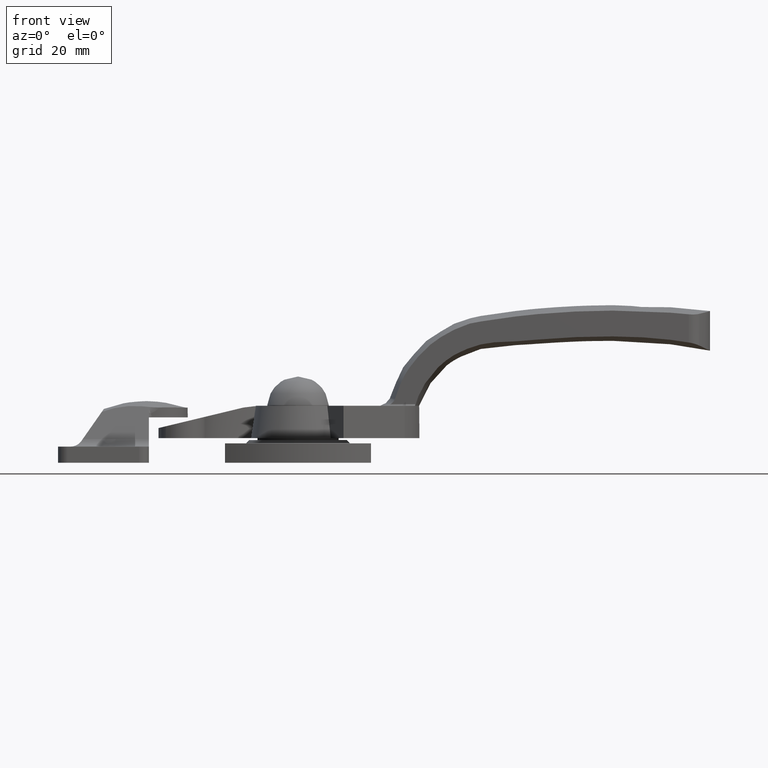
[diagram: clean part render]
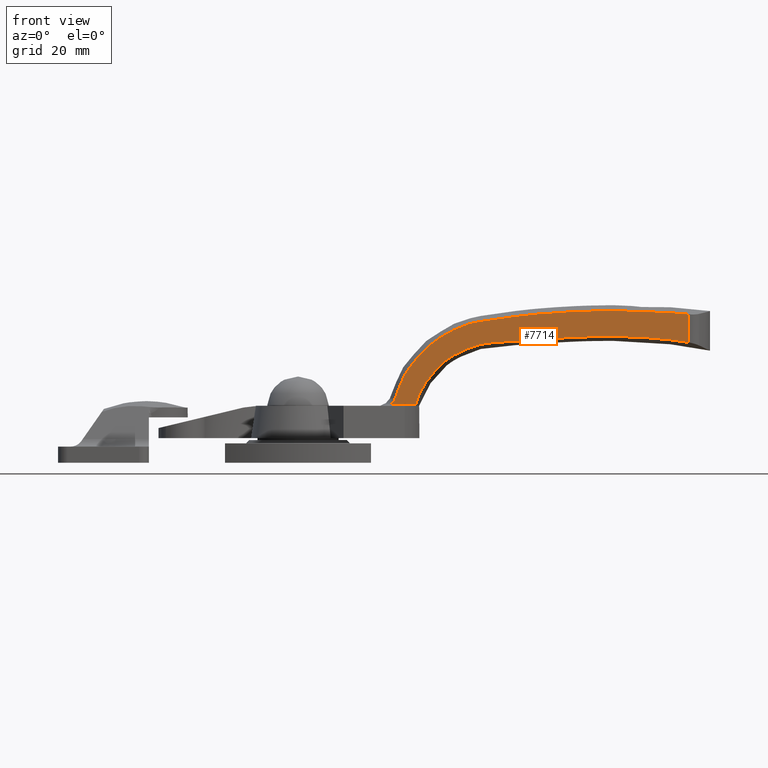
[diagram: same view with one face highlighted and labeled with its STEP entity id]
A machine part, front view. The second image highlights one B-rep face of the part: STEP entity #7714.
In plain terms, the highlighted face is a freeform B-spline surface patch.
Its self-contained STEP definition (entity closure, byte-faithful):
#5707=CARTESIAN_POINT('',(120.389551045582000,8.042102221063660,37.108922308996952));
#5708=VERTEX_POINT('',#5707);
#5737=CARTESIAN_POINT('',(120.389549128308400,8.042102282749179,45.787161506281400));
#5738=VERTEX_POINT('',#5737);
#5760=CARTESIAN_POINT('',(120.389551045582000,8.042102221063660,37.108922308996952));
#5761=CARTESIAN_POINT('',(120.389549128308400,8.042102282749179,45.787161506281400));
#5762=QUASI_UNIFORM_CURVE('',1,(#5760,#5761),.UNSPECIFIED.,.F.,.U.);
#5763=EDGE_CURVE('',#5708,#5738,#5762,.T.);
#5976=CARTESIAN_POINT('',(28.543661557841851,10.997321413596620,18.100000000014550));
#5977=VERTEX_POINT('',#5976);
#6006=CARTESIAN_POINT('',(36.129667860296003,10.753235243333000,18.100000000000399));
#6007=VERTEX_POINT('',#6006);
#6029=CARTESIAN_POINT('',(36.129667860296003,10.753235243333000,18.100000000000399));
#6030=CARTESIAN_POINT('',(28.543661557841851,10.997321413596620,18.100000000014550));
#6031=QUASI_UNIFORM_CURVE('',1,(#6029,#6030),.UNSPECIFIED.,.F.,.U.);
#6032=EDGE_CURVE('',#6007,#5977,#6031,.T.);
#6364=CARTESIAN_POINT('',(29.879633809087451,10.954335376213280,19.726377144041049));
#6365=VERTEX_POINT('',#6364);
#6366=CARTESIAN_POINT('',(28.543661557841851,10.997321413596620,18.100000000014550));
#6367=CARTESIAN_POINT('',(28.619709889477910,10.994874494191521,18.146037769463501));
#6368=CARTESIAN_POINT('',(28.694045838932169,10.992482672131709,18.195146830348762));
#6369=CARTESIAN_POINT('',(28.802884005536171,10.988980712047180,18.273591666486279));
#6370=CARTESIAN_POINT('',(28.838718455752261,10.987827708296519,18.300537977487281));
#6371=CARTESIAN_POINT('',(28.909472732473180,10.985551129586840,18.356071048684420));
#6372=CARTESIAN_POINT('',(28.944452715757809,10.984425619032550,18.384714039905798));
#6373=CARTESIAN_POINT('',(29.115370367803951,10.978926198986240,18.530739549343060));
#6374=CARTESIAN_POINT('',(29.240590089882520,10.974897148495740,18.657315428113741));
#6375=CARTESIAN_POINT('',(29.467756132358790,10.967587888902230,18.930185365414179));
#6376=CARTESIAN_POINT('',(29.569722351126320,10.964307039552351,19.076462565229519));
#6377=CARTESIAN_POINT('',(29.747852403537880,10.958575554421760,19.390877803041651));
#6378=CARTESIAN_POINT('',(29.821757617783799,10.956197591630950,19.555103021010900));
#6379=CARTESIAN_POINT('',(29.879633809087451,10.954335376213280,19.726377144041049));
#6380=B_SPLINE_CURVE_WITH_KNOTS('',3,(#6366,#6367,#6368,#6369,#6370,#6371,#6372,#6373,#6374,#6375,#6376,#6377,#6378,#6379),.UNSPECIFIED.,.F.,.U.,(4,2,2,2,2,2,4),(0.0,0.125000000000003,0.187500000000004,0.250000000000005,0.500000000000003,0.750000000000002,1.0),.UNSPECIFIED.);
#6381=EDGE_CURVE('',#5977,#6365,#6380,.T.);
#7060=CARTESIAN_POINT('',(36.129667860286297,10.753235243308721,17.600000000000001));
#7061=VERTEX_POINT('',#7060);
#7071=CARTESIAN_POINT('',(36.129667860286297,10.753235243308721,17.600000000000001));
#7072=CARTESIAN_POINT('',(36.129667860296003,10.753235243333000,18.100000000000399));
#7073=QUASI_UNIFORM_CURVE('',1,(#7071,#7072),.UNSPECIFIED.,.F.,.U.);
#7074=EDGE_CURVE('',#7061,#6007,#7073,.T.);
#7509=CARTESIAN_POINT('',(124.977251323112200,7.894489083600392,48.385116787787041));
#7510=CARTESIAN_POINT('',(23.955957174479160,11.144934683129820,48.385116787787041));
#7511=CARTESIAN_POINT('',(124.977251323113290,7.894489083632924,16.135439739246252));
#7512=CARTESIAN_POINT('',(23.955957174480211,11.144934683162351,16.135439739246252));
#7513=B_SPLINE_SURFACE_WITH_KNOTS('',1,1,((#7509,#7511),(#7510,#7512)),.UNSPECIFIED.,.F.,.F.,.U.,(2,2),(2,2),(0.0,101.073573539576300),(0.0,32.249677048540789),.UNSPECIFIED.);
#7514=CARTESIAN_POINT('',(114.780559554541600,8.222576267285890,37.922086692367301));
#7515=VERTEX_POINT('',#7514);
#7516=CARTESIAN_POINT('',(120.389551045582000,8.042102221063660,37.108922308996952));
#7517=CARTESIAN_POINT('',(118.521656566568690,8.102203306095110,37.411789104678348));
#7518=CARTESIAN_POINT('',(116.652382370383510,8.162348784693755,37.689849315295326));
#7519=CARTESIAN_POINT('',(114.780559554541600,8.222576267285890,37.922086692367301));
#7520=B_SPLINE_CURVE_WITH_KNOTS('',3,(#7516,#7517,#7518,#7519),.UNSPECIFIED.,.F.,.U.,(4,4),(0.0,0.055271877413624),.UNSPECIFIED.);
#7521=EDGE_CURVE('',#5708,#7515,#7520,.T.);
#7522=ORIENTED_EDGE('',*,*,#7521,.F.);
#7523=ORIENTED_EDGE('',*,*,#5763,.T.);
#7524=CARTESIAN_POINT('',(114.780559554541600,8.222576267284209,46.282609736789603));
#7525=VERTEX_POINT('',#7524);
#7526=CARTESIAN_POINT('',(120.389549128308400,8.042102282749179,45.787161506281400));
#7527=CARTESIAN_POINT('',(118.520776811611700,8.102231612951611,45.970123099677757));
#7528=CARTESIAN_POINT('',(116.651309918504400,8.162383291737639,46.139197303243421));
#7529=CARTESIAN_POINT('',(114.780559554541600,8.222576267284209,46.282609736789603));
#7530=B_SPLINE_CURVE_WITH_KNOTS('',3,(#7526,#7527,#7528,#7529),.UNSPECIFIED.,.F.,.U.,(4,4),(0.065217625289444,0.120512185644654),.UNSPECIFIED.);
#7531=EDGE_CURVE('',#5738,#7525,#7530,.T.);
#7532=ORIENTED_EDGE('',*,*,#7531,.T.);
#7533=CARTESIAN_POINT('',(97.000035754978995,8.794679662203011,46.919999581346602));
#7534=VERTEX_POINT('',#7533);
#7535=CARTESIAN_POINT('',(114.780559554541600,8.222576267284209,46.282609736789603));
#7536=CARTESIAN_POINT('',(108.871333020945300,8.412710629991013,46.735601659268902));
#7537=CARTESIAN_POINT('',(102.949300431718500,8.603257038370678,46.932548751188172));
#7538=CARTESIAN_POINT('',(97.000035754978995,8.794679662203011,46.919999581346602));
#7539=B_SPLINE_CURVE_WITH_KNOTS('',3,(#7535,#7536,#7537,#7538),.UNSPECIFIED.,.F.,.U.,(4,4),(0.120512185644654,0.295173662172599),.UNSPECIFIED.);
#7540=EDGE_CURVE('',#7525,#7534,#7539,.T.);
#7541=ORIENTED_EDGE('',*,*,#7540,.T.);
#7542=CARTESIAN_POINT('',(74.000035754978697,9.534724119355809,45.852547394306399));
#7543=VERTEX_POINT('',#7542);
#7544=CARTESIAN_POINT('',(97.000035754978995,8.794679662203011,46.919999581346602));
#7545=CARTESIAN_POINT('',(89.303547286617516,9.042320689618538,46.903764879039457));
#7546=CARTESIAN_POINT('',(81.561482462261040,9.291428174843739,46.536911583825074));
#7547=CARTESIAN_POINT('',(74.000035754978697,9.534724119355762,45.852547394306399));
#7548=B_SPLINE_CURVE_WITH_KNOTS('',3,(#7544,#7545,#7546,#7547),.UNSPECIFIED.,.F.,.U.,(4,4),(0.295173662172599,0.521131005307820),.UNSPECIFIED.);
#7549=EDGE_CURVE('',#7534,#7543,#7548,.T.);
#7550=ORIENTED_EDGE('',*,*,#7549,.T.);
#7551=CARTESIAN_POINT('',(67.000035754977603,9.759955041098051,45.101160633378903));
#7552=VERTEX_POINT('',#7551);
#7553=CARTESIAN_POINT('',(74.000035754978711,9.534724119355760,45.852547394306391));
#7554=CARTESIAN_POINT('',(71.695891536868089,9.608861908794552,45.644006112273317));
#7555=CARTESIAN_POINT('',(69.408518777419516,9.682460062362850,45.405982068904713));
#7556=CARTESIAN_POINT('',(67.000035754977603,9.759955041098051,45.101160633378903));
#7557=B_SPLINE_CURVE_WITH_KNOTS('',3,(#7553,#7554,#7555,#7556),.UNSPECIFIED.,.F.,.U.,(4,4),(0.521131005307820,0.589985329867594),.UNSPECIFIED.);
#7558=EDGE_CURVE('',#7543,#7552,#7557,.T.);
#7559=ORIENTED_EDGE('',*,*,#7558,.T.);
#7560=CARTESIAN_POINT('',(56.302319424925699,10.104163113891341,43.561265559293098));
#7561=VERTEX_POINT('',#7560);
#7562=CARTESIAN_POINT('',(67.000035754977603,9.759955041098051,45.101160633378903));
#7563=CARTESIAN_POINT('',(63.309832463374221,9.878690453781102,44.634122645463577));
#7564=CARTESIAN_POINT('',(59.335317720356130,10.006573827930710,44.010274961609653));
#7565=CARTESIAN_POINT('',(56.302319424925699,10.104163113891341,43.561265559293098));
#7566=B_SPLINE_CURVE_WITH_KNOTS('',3,(#7562,#7563,#7564,#7565),.UNSPECIFIED.,.F.,.U.,(4,4),(0.589985329867594,0.695481799124079),.UNSPECIFIED.);
#7567=EDGE_CURVE('',#7552,#7561,#7566,.T.);
#7568=ORIENTED_EDGE('',*,*,#7567,.T.);
#7569=CARTESIAN_POINT('',(48.121576841421202,10.367385427123240,41.024135521037749));
#7570=VERTEX_POINT('',#7569);
#7571=CARTESIAN_POINT('',(56.302319424925699,10.104163113891341,43.561265559293098));
#7572=CARTESIAN_POINT('',(53.895068949895489,10.181618434370240,43.204892758601488));
#7573=CARTESIAN_POINT('',(52.080916039731861,10.239990338961240,42.958657342436979));
#7574=CARTESIAN_POINT('',(48.121576841421202,10.367385427123240,41.024135521037749));
#7575=B_SPLINE_CURVE_WITH_KNOTS('',3,(#7571,#7572,#7573,#7574),.UNSPECIFIED.,.F.,.U.,(4,4),(0.695481799124079,0.779212945995489),.UNSPECIFIED.);
#7576=EDGE_CURVE('',#7561,#7570,#7575,.T.);
#7577=ORIENTED_EDGE('',*,*,#7576,.T.);
#7578=CARTESIAN_POINT('',(40.689955710595846,10.606504123886140,36.346563408661403));
#7579=VERTEX_POINT('',#7578);
#7580=CARTESIAN_POINT('',(48.121576841421202,10.367385427123240,41.024135521037749));
#7581=CARTESIAN_POINT('',(45.955991635496083,10.437064963127840,39.966036775987313));
#7582=CARTESIAN_POINT('',(43.148650123192880,10.527393551193660,38.402868399680003));
#7583=CARTESIAN_POINT('',(40.689955710595846,10.606504123886140,36.346563408661403));
#7584=B_SPLINE_CURVE_WITH_KNOTS('',3,(#7580,#7581,#7582,#7583),.UNSPECIFIED.,.F.,.U.,(4,4),(0.779212945995489,0.825010217675883),.UNSPECIFIED.);
#7585=EDGE_CURVE('',#7570,#7579,#7584,.T.);
#7586=ORIENTED_EDGE('',*,*,#7585,.T.);
#7587=CARTESIAN_POINT('',(34.407588142192587,10.808644615052399,29.410390440263502));
#7588=VERTEX_POINT('',#7587);
#7589=CARTESIAN_POINT('',(40.689955710595846,10.606504123886140,36.346563408661403));
#7590=CARTESIAN_POINT('',(38.052006864185799,10.691382359624560,34.140340727578142));
#7591=CARTESIAN_POINT('',(35.815395468393241,10.763347223374980,31.366454664464278));
#7592=CARTESIAN_POINT('',(34.407588142192587,10.808644615052399,29.410390440263502));
#7593=B_SPLINE_CURVE_WITH_KNOTS('',3,(#7589,#7590,#7591,#7592),.UNSPECIFIED.,.F.,.U.,(4,4),(0.825010217675883,0.874146401245127),.UNSPECIFIED.);
#7594=EDGE_CURVE('',#7579,#7588,#7593,.T.);
#7595=ORIENTED_EDGE('',*,*,#7594,.T.);
#7596=CARTESIAN_POINT('',(31.667529764556200,10.896808311342280,24.522012288374750));
#7597=VERTEX_POINT('',#7596);
#7598=CARTESIAN_POINT('',(34.407588142192587,10.808644615052399,29.410390440263502));
#7599=CARTESIAN_POINT('',(32.844965503563373,10.858923320367641,27.239219582957809));
#7600=CARTESIAN_POINT('',(32.303455515752923,10.876346862322951,26.075630923265329));
#7601=CARTESIAN_POINT('',(31.667529764556200,10.896808311342280,24.522012288374750));
#7602=B_SPLINE_CURVE_WITH_KNOTS('',3,(#7598,#7599,#7600,#7601),.UNSPECIFIED.,.F.,.U.,(4,4),(0.874146401245127,0.928686046970893),.UNSPECIFIED.);
#7603=EDGE_CURVE('',#7588,#7597,#7602,.T.);
#7604=ORIENTED_EDGE('',*,*,#7603,.T.);
#7605=CARTESIAN_POINT('',(30.139563705589499,10.945971911893301,20.485746129404500));
#7606=VERTEX_POINT('',#7605);
#7607=CARTESIAN_POINT('',(31.667529764556200,10.896808311342280,24.522012288374750));
#7608=CARTESIAN_POINT('',(31.176238070505011,10.912616037208220,23.321746487519800));
#7609=CARTESIAN_POINT('',(30.628594221395009,10.930236941339841,21.888690855267068));
#7610=CARTESIAN_POINT('',(30.139563705589499,10.945971911893301,20.485746129404500));
#7611=B_SPLINE_CURVE_WITH_KNOTS('',3,(#7607,#7608,#7609,#7610),.UNSPECIFIED.,.F.,.U.,(4,4),(0.928686046970893,0.970821272492334),.UNSPECIFIED.);
#7612=EDGE_CURVE('',#7597,#7606,#7611,.T.);
#7613=ORIENTED_EDGE('',*,*,#7612,.T.);
#7614=CARTESIAN_POINT('',(30.139563705589499,10.945971911893301,20.485746129404500));
#7615=CARTESIAN_POINT('',(30.051167582419978,10.948816131939131,20.231722066848690));
#7616=CARTESIAN_POINT('',(29.964691603754549,10.951598569711150,19.978685085341120));
#7617=CARTESIAN_POINT('',(29.879633809087451,10.954335376213280,19.726377144041049));
#7618=B_SPLINE_CURVE_WITH_KNOTS('',3,(#7614,#7615,#7616,#7617),.UNSPECIFIED.,.F.,.U.,(4,4),(0.970821272492334,0.978449119660305),.UNSPECIFIED.);
#7619=EDGE_CURVE('',#7606,#6365,#7618,.T.);
#7620=ORIENTED_EDGE('',*,*,#7619,.T.);
#7621=ORIENTED_EDGE('',*,*,#6381,.F.);
#7622=ORIENTED_EDGE('',*,*,#6032,.F.);
#7623=ORIENTED_EDGE('',*,*,#7074,.F.);
#7624=CARTESIAN_POINT('',(37.088196315556452,10.722393779380480,20.485746129402351));
#7625=VERTEX_POINT('',#7624);
#7626=CARTESIAN_POINT('',(37.088196315556452,10.722393779380480,20.485746129402351));
#7627=CARTESIAN_POINT('',(36.725643710037900,10.734059216163610,19.543922892398150));
#7628=CARTESIAN_POINT('',(36.427655785161797,10.743647229733300,18.571961446199051));
#7629=CARTESIAN_POINT('',(36.129667860286297,10.753235243308721,17.600000000000001));
#7630=B_SPLINE_CURVE_WITH_KNOTS('',3,(#7626,#7627,#7628,#7629),.UNSPECIFIED.,.F.,.U.,(4,4),(0.970821272492334,1.0),.UNSPECIFIED.);
#7631=EDGE_CURVE('',#7625,#7061,#7630,.T.);
#7632=ORIENTED_EDGE('',*,*,#7631,.F.);
#7633=CARTESIAN_POINT('',(39.189401604279553,10.654785721672740,24.522012288374899));
#7634=VERTEX_POINT('',#7633);
#7635=CARTESIAN_POINT('',(39.189401604279553,10.654785721672740,24.522012288374899));
#7636=CARTESIAN_POINT('',(38.269910088621913,10.684371139040220,23.142959750252039));
#7637=CARTESIAN_POINT('',(37.611736479975370,10.705548431689040,21.845775777099739));
#7638=CARTESIAN_POINT('',(37.088196315556452,10.722393779380480,20.485746129402351));
#7639=B_SPLINE_CURVE_WITH_KNOTS('',3,(#7635,#7636,#7637,#7638),.UNSPECIFIED.,.F.,.U.,(4,4),(0.928686046970893,0.970821272492334),.UNSPECIFIED.);
#7640=EDGE_CURVE('',#7634,#7625,#7639,.T.);
#7641=ORIENTED_EDGE('',*,*,#7640,.F.);
#7642=CARTESIAN_POINT('',(43.148851474079152,10.527387072562240,29.410390440262749));
#7643=VERTEX_POINT('',#7642);
#7644=CARTESIAN_POINT('',(43.148851474079152,10.527387072562240,29.410390440262749));
#7645=CARTESIAN_POINT('',(42.007600554731447,10.564107786344771,28.229258528821049));
#7646=CARTESIAN_POINT('',(40.379587271762773,10.616490490963519,26.307051668979309));
#7647=CARTESIAN_POINT('',(39.189401604279553,10.654785721672740,24.522012288374899));
#7648=B_SPLINE_CURVE_WITH_KNOTS('',3,(#7644,#7645,#7646,#7647),.UNSPECIFIED.,.F.,.U.,(4,4),(0.874146401245127,0.928686046970893),.UNSPECIFIED.);
#7649=EDGE_CURVE('',#7643,#7634,#7648,.T.);
#7650=ORIENTED_EDGE('',*,*,#7649,.F.);
#7651=CARTESIAN_POINT('',(45.546003469517402,10.450256679206380,31.490515649752140));
#7652=VERTEX_POINT('',#7651);
#7653=CARTESIAN_POINT('',(45.546003469517402,10.450256679206380,31.490515649752140));
#7654=CARTESIAN_POINT('',(44.810127424786010,10.473934113466351,30.937108745374740));
#7655=CARTESIAN_POINT('',(44.177034072726670,10.494304427642490,30.474502860646108));
#7656=CARTESIAN_POINT('',(43.148851474079152,10.527387072562240,29.410390440262749));
#7657=B_SPLINE_CURVE_WITH_KNOTS('',3,(#7653,#7654,#7655,#7656),.UNSPECIFIED.,.F.,.U.,(4,4),(0.825010217675883,0.874146401245127),.UNSPECIFIED.);
#7658=EDGE_CURVE('',#7652,#7643,#7657,.T.);
#7659=ORIENTED_EDGE('',*,*,#7658,.F.);
#7660=CARTESIAN_POINT('',(48.121576841421302,10.367385427124800,33.246233073444550));
#7661=VERTEX_POINT('',#7660);
#7662=CARTESIAN_POINT('',(48.121576841421302,10.367385427124800,33.246233073444550));
#7663=CARTESIAN_POINT('',(47.007035434439132,10.403246739752539,32.600999057588453));
#7664=CARTESIAN_POINT('',(46.231875116343893,10.428188178744330,32.006317336175577));
#7665=CARTESIAN_POINT('',(45.546003469517402,10.450256679206380,31.490515649752140));
#7666=B_SPLINE_CURVE_WITH_KNOTS('',3,(#7662,#7663,#7664,#7665),.UNSPECIFIED.,.F.,.U.,(4,4),(0.779212945995489,0.825010217675883),.UNSPECIFIED.);
#7667=EDGE_CURVE('',#7661,#7652,#7666,.T.);
#7668=ORIENTED_EDGE('',*,*,#7667,.F.);
#7669=CARTESIAN_POINT('',(56.302319424945502,10.104163113892460,36.487496709594453));
#7670=VERTEX_POINT('',#7669);
#7671=CARTESIAN_POINT('',(56.302319424945502,10.104163113892460,36.487496709594453));
#7672=CARTESIAN_POINT('',(53.331451256031947,10.199753310470101,35.774575805222980));
#7673=CARTESIAN_POINT('',(50.159292775550881,10.301820193108730,34.425914355015543));
#7674=CARTESIAN_POINT('',(48.121576841421302,10.367385427124800,33.246233073444550));
#7675=B_SPLINE_CURVE_WITH_KNOTS('',3,(#7671,#7672,#7673,#7674),.UNSPECIFIED.,.F.,.U.,(4,4),(0.695481799124079,0.779212945995489),.UNSPECIFIED.);
#7676=EDGE_CURVE('',#7670,#7661,#7675,.T.);
#7677=ORIENTED_EDGE('',*,*,#7676,.F.);
#7678=CARTESIAN_POINT('',(67.000035754968408,9.759955041099730,37.447725859809047));
#7679=VERTEX_POINT('',#7678);
#7680=CARTESIAN_POINT('',(67.000035754968408,9.759955041099730,37.447725859809047));
#7681=CARTESIAN_POINT('',(63.469028742779500,9.873568178817047,37.274765747341590));
#7682=CARTESIAN_POINT('',(60.045443867372931,9.983724918409900,37.385736385994008));
#7683=CARTESIAN_POINT('',(56.302319424945502,10.104163113892460,36.487496709594453));
#7684=B_SPLINE_CURVE_WITH_KNOTS('',3,(#7680,#7681,#7682,#7683),.UNSPECIFIED.,.F.,.U.,(4,4),(0.589985329867594,0.695481799124079),.UNSPECIFIED.);
#7685=EDGE_CURVE('',#7679,#7670,#7684,.T.);
#7686=ORIENTED_EDGE('',*,*,#7685,.F.);
#7687=CARTESIAN_POINT('',(74.000035754968494,9.534724119357550,37.998597684121400));
#7688=VERTEX_POINT('',#7687);
#7689=CARTESIAN_POINT('',(74.000035754968494,9.534724119357550,37.998597684121400));
#7690=CARTESIAN_POINT('',(71.654956103962135,9.610179040978155,37.794445522554241));
#7691=CARTESIAN_POINT('',(69.304616226290236,9.685803214843149,37.560611644552992));
#7692=CARTESIAN_POINT('',(67.000035754968408,9.759955041099730,37.447725859809047));
#7693=B_SPLINE_CURVE_WITH_KNOTS('',3,(#7689,#7690,#7691,#7692),.UNSPECIFIED.,.F.,.U.,(4,4),(0.521131005307820,0.589985329867594),.UNSPECIFIED.);
#7694=EDGE_CURVE('',#7688,#7679,#7693,.T.);
#7695=ORIENTED_EDGE('',*,*,#7694,.F.);
#7696=CARTESIAN_POINT('',(97.000035754978995,8.794679662204610,38.969999581346897));
#7697=VERTEX_POINT('',#7696);
#7698=CARTESIAN_POINT('',(97.000035754978995,8.794679662204610,38.969999581346897));
#7699=CARTESIAN_POINT('',(89.334953187968381,9.041310178174321,39.018865235086373));
#7700=CARTESIAN_POINT('',(81.695819146537701,9.287105778383234,38.668558217725682));
#7701=CARTESIAN_POINT('',(74.000035754968494,9.534724119357550,37.998597684121400));
#7702=B_SPLINE_CURVE_WITH_KNOTS('',3,(#7698,#7699,#7700,#7701),.UNSPECIFIED.,.F.,.U.,(4,4),(0.295173662172600,0.521131005307820),.UNSPECIFIED.);
#7703=EDGE_CURVE('',#7697,#7688,#7702,.T.);
#7704=ORIENTED_EDGE('',*,*,#7703,.F.);
#7705=CARTESIAN_POINT('',(114.780559554541600,8.222576267285890,37.922086692367301));
#7706=CARTESIAN_POINT('',(108.865516938054200,8.412897767378226,38.655947263671393));
#7707=CARTESIAN_POINT('',(102.925024163350700,8.604038147842237,38.932227198669693));
#7708=CARTESIAN_POINT('',(97.000035754978995,8.794679662204610,38.969999581346897));
#7709=B_SPLINE_CURVE_WITH_KNOTS('',3,(#7705,#7706,#7707,#7708),.UNSPECIFIED.,.F.,.U.,(4,4),(0.120512185644654,0.295173662172599),.UNSPECIFIED.);
#7710=EDGE_CURVE('',#7515,#7697,#7709,.T.);
#7711=ORIENTED_EDGE('',*,*,#7710,.F.);
#7712=EDGE_LOOP('',(#7522,#7523,#7532,#7541,#7550,#7559,#7568,#7577,#7586,#7595,#7604,#7613,#7620,#7621,#7622,#7623,#7632,#7641,#7650,#7659,#7668,#7677,#7686,#7695,#7704,#7711));
#7713=FACE_OUTER_BOUND('',#7712,.T.);
#7714=ADVANCED_FACE('',(#7713),#7513,.T.);